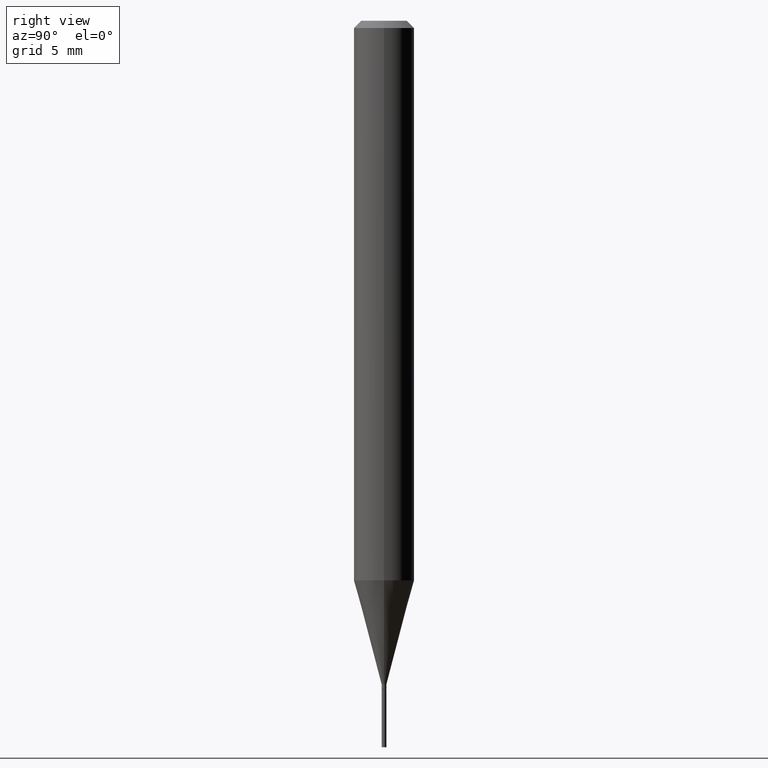
[diagram: clean part render]
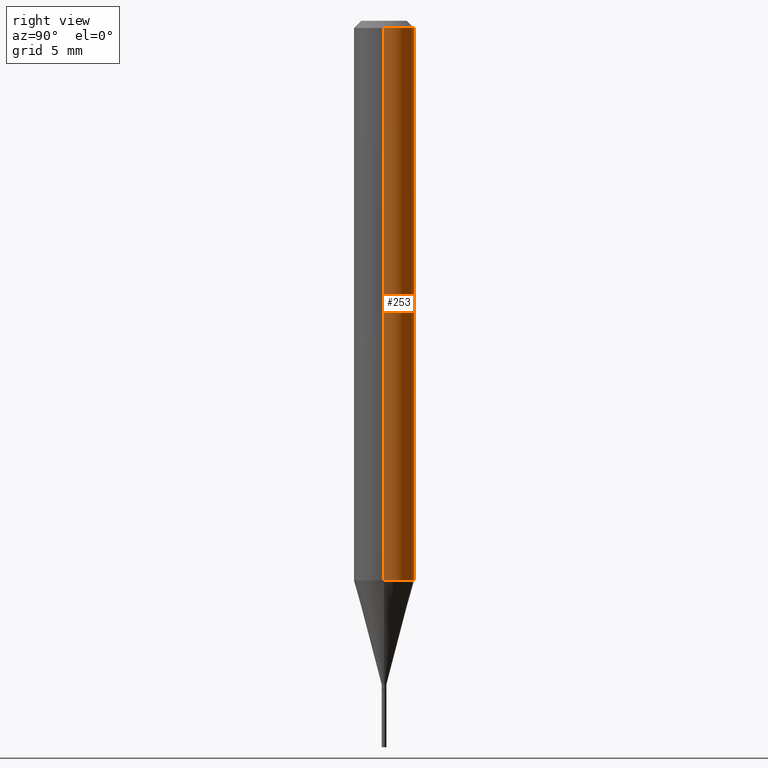
[diagram: same view with one face highlighted and labeled with its STEP entity id]
A machine part, right view. The second image highlights one B-rep face of the part: STEP entity #253.
In plain terms, the highlighted cylindrical surface (edge-blend (fillet) strip) has radius 1.5875 mm, axis along (-0, 0, 1).
Its self-contained STEP definition (entity closure, byte-faithful):
#10 = CIRCLE ( 'NONE', #70, 0.06250000000000000000 ) ;
#25 = EDGE_CURVE ( 'NONE', #206, #163, #32, .T. ) ;
#30 = DIRECTION ( 'NONE',  ( 1.000000000000000000, -6.982962677686266711E-15, 0.000000000000000000 ) ) ;
#32 = CIRCLE ( 'NONE', #394, 0.06250000000000000000 ) ;
#43 = CARTESIAN_POINT ( 'NONE',  ( 2.825511969075693350E-29, -4.034082253576240820E-15, -1.155407078564790080 ) ) ;
#46 = DIRECTION ( 'NONE',  ( -2.445468806185136597E-29, 3.491481338843145583E-15, 1.000000000000000000 ) ) ;
#57 = ORIENTED_EDGE ( 'NONE', *, *, #190, .F. ) ;
#69 = CARTESIAN_POINT ( 'NONE',  ( 0.06250000000000000000, -4.888073874380388472E-16, -0.01499999999999999944 ) ) ;
#70 = AXIS2_PLACEMENT_3D ( 'NONE', #43, #46, #192 ) ;
#95 = ORIENTED_EDGE ( 'NONE', *, *, #422, .T. ) ;
#96 = CARTESIAN_POINT ( 'NONE',  ( 0.06250000000000000000, -4.470517420931631701E-15, -1.155407078564790080 ) ) ;
#116 = FACE_OUTER_BOUND ( 'NONE', #135, .T. ) ;
#123 = CYLINDRICAL_SURFACE ( 'NONE', #146, 0.06250000000000000000 ) ;
#130 = DIRECTION ( 'NONE',  ( -2.445468806185136877E-29, 3.491481338843145188E-15, 1.000000000000000000 ) ) ;
#135 = EDGE_LOOP ( 'NONE', ( #229, #95, #441, #57 ) ) ;
#146 = AXIS2_PLACEMENT_3D ( 'NONE', #261, #437, #161 ) ;
#148 = CARTESIAN_POINT ( 'NONE',  ( 0.06250000000000000000, -4.364351673553916694E-16, 3.047610484872459871E-30 ) ) ;
#161 = DIRECTION ( 'NONE',  ( 1.000000000000000000, -6.982962677686266711E-15, 4.876176775795935793E-29 ) ) ;
#163 = VERTEX_POINT ( 'NONE', #371 ) ;
#190 = EDGE_CURVE ( 'NONE', #445, #206, #363, .T. ) ;
#192 = DIRECTION ( 'NONE',  ( 1.000000000000000000, -6.982962677686270655E-15, 0.000000000000000000 ) ) ;
#206 = VERTEX_POINT ( 'NONE', #69 ) ;
#212 = CARTESIAN_POINT ( 'NONE',  ( 3.668203209277705088E-31, -5.237222008264718399E-17, -0.01499999999999999944 ) ) ;
#229 = ORIENTED_EDGE ( 'NONE', *, *, #344, .T. ) ;
#236 = LINE ( 'NONE', #353, #286 ) ;
#253 = ADVANCED_FACE ( 'NONE', ( #116 ), #123, .T. ) ;
#261 = CARTESIAN_POINT ( 'NONE',  ( 0.000000000000000000, 0.000000000000000000, 0.000000000000000000 ) ) ;
#268 = VERTEX_POINT ( 'NONE', #334 ) ;
#281 = DIRECTION ( 'NONE',  ( -2.445468806185136597E-29, 3.491481338843145583E-15, 1.000000000000000000 ) ) ;
#286 = VECTOR ( 'NONE', #130, 39.37007874015748143 ) ;
#292 = DIRECTION ( 'NONE',  ( -2.445468806185136877E-29, 3.491481338843145188E-15, 1.000000000000000000 ) ) ;
#323 = VECTOR ( 'NONE', #292, 39.37007874015748143 ) ;
#334 = CARTESIAN_POINT ( 'NONE',  ( -0.06250000000000000000, -3.589993043726178204E-15, -1.155407078564790080 ) ) ;
#344 = EDGE_CURVE ( 'NONE', #445, #268, #10, .T. ) ;
#353 = CARTESIAN_POINT ( 'NONE',  ( -0.06250000000000000000, 4.440892098500626162E-16, -3.074334431409316114E-30 ) ) ;
#363 = LINE ( 'NONE', #148, #323 ) ;
#371 = CARTESIAN_POINT ( 'NONE',  ( -0.06250000000000000000, -1.599138026979381531E-15, -0.01499999999999999944 ) ) ;
#394 = AXIS2_PLACEMENT_3D ( 'NONE', #212, #281, #30 ) ;
#422 = EDGE_CURVE ( 'NONE', #268, #163, #236, .T. ) ;
#437 = DIRECTION ( 'NONE',  ( -2.445468806185136597E-29, 3.491481338843145583E-15, 1.000000000000000000 ) ) ;
#441 = ORIENTED_EDGE ( 'NONE', *, *, #25, .F. ) ;
#445 = VERTEX_POINT ( 'NONE', #96 ) ;